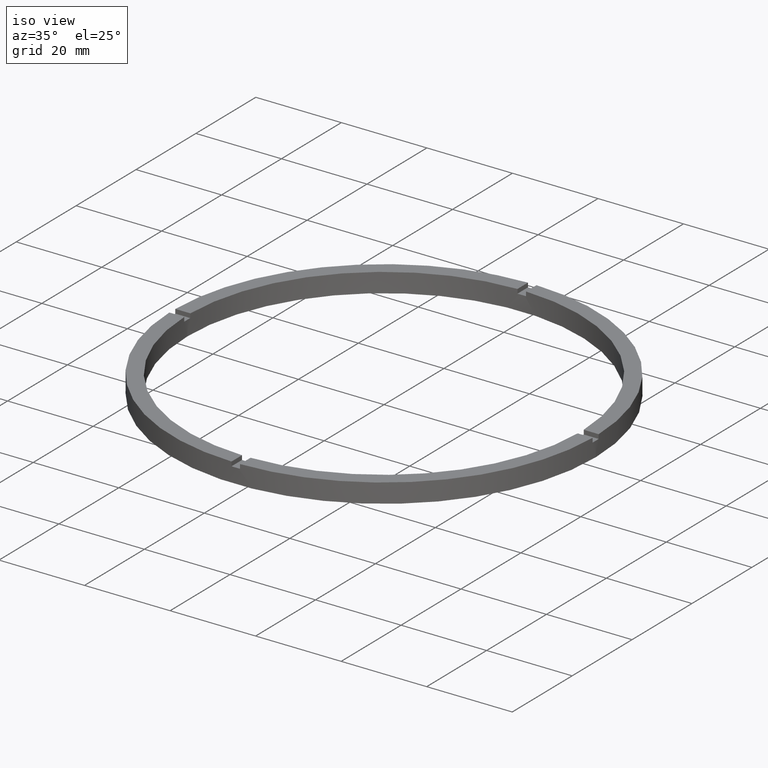
[diagram: clean part render]
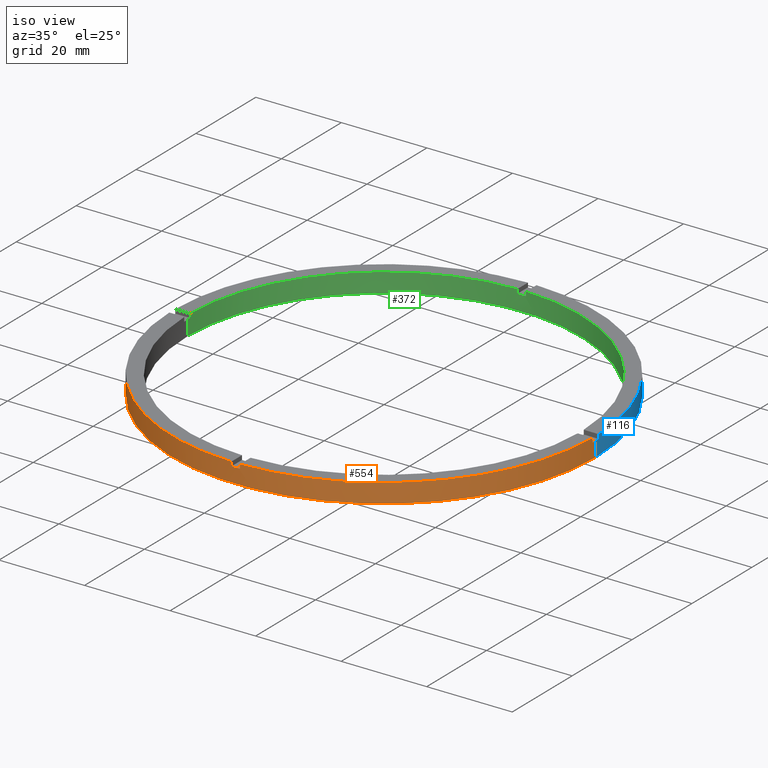
[diagram: same view with three faces highlighted in distinct colors, each labeled with its STEP entity id]
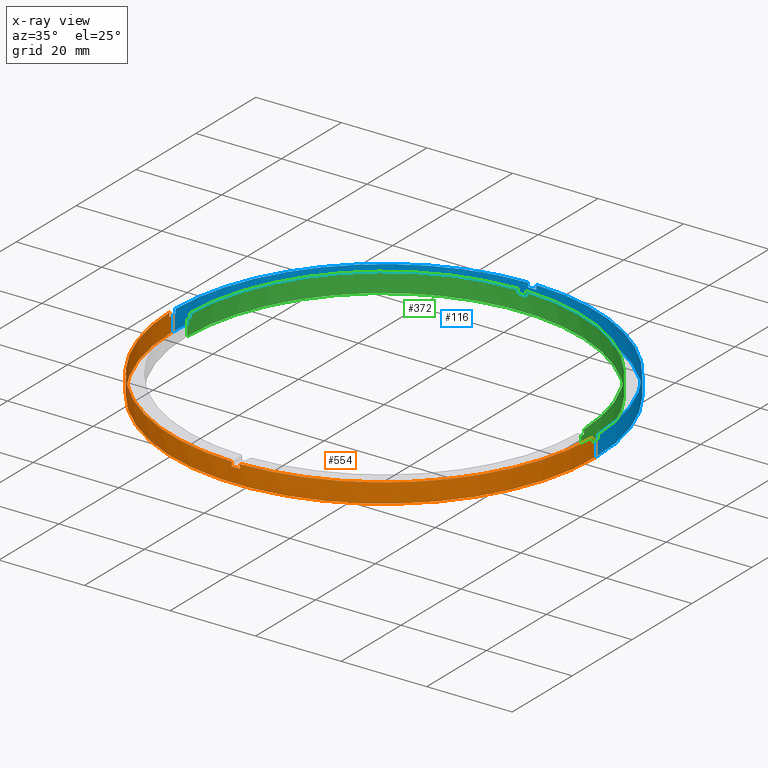
[diagram: x-ray of the same camera — body ghosted, the three highlighted faces saturated]
A machine part, iso view with three faces highlighted in distinct colors.
The next image is the same camera in x-ray (body ghosted, the three faces saturated) — at least one of them is partly hidden behind the body in this view.
Their STEP definitions:

[orange] entity #554 — the highlighted cylindrical surface (partial cylindrical patch) has radius 49.5 mm, axis along (-0, -0, -1).
#7 = EDGE_CURVE ( 'NONE', #552, #544, #697, .T. ) ;
#14 = VERTEX_POINT ( 'NONE', #74 ) ;
#20 = AXIS2_PLACEMENT_3D ( 'NONE', #117, #415, #742 ) ;
#23 = VERTEX_POINT ( 'NONE', #293 ) ;
#24 = CARTESIAN_POINT ( 'NONE',  ( 0.000000000000000000, 0.000000000000000000, 3.499999999999999556 ) ) ;
#64 = CARTESIAN_POINT ( 'NONE',  ( 0.9999999999998430145, -49.48989795907849043, 4.500000000000000000 ) ) ;
#65 = CIRCLE ( 'NONE', #473, 49.50000000000000711 ) ;
#74 = CARTESIAN_POINT ( 'NONE',  ( 0.9999999999998430145, -49.48989795907849043, 3.499999999999999556 ) ) ;
#79 = CARTESIAN_POINT ( 'NONE',  ( 49.48989795907849043, -1.000000000000155209, 3.499999999999999556 ) ) ;
#92 = DIRECTION ( 'NONE',  ( 0.000000000000000000, 0.000000000000000000, 1.000000000000000000 ) ) ;
#103 = EDGE_CURVE ( 'NONE', #525, #189, #181, .T. ) ;
#110 = DIRECTION ( 'NONE',  ( -0.000000000000000000, -0.000000000000000000, -1.000000000000000000 ) ) ;
#111 = AXIS2_PLACEMENT_3D ( 'NONE', #627, #179, #379 ) ;
#117 = CARTESIAN_POINT ( 'NONE',  ( 0.000000000000000000, 0.000000000000000000, 3.499999999999999556 ) ) ;
#134 = LINE ( 'NONE', #504, #165 ) ;
#146 = DIRECTION ( 'NONE',  ( 1.000000000000000000, 0.000000000000000000, 0.000000000000000000 ) ) ;
#154 = LINE ( 'NONE', #648, #393 ) ;
#155 = DIRECTION ( 'NONE',  ( 0.000000000000000000, 0.000000000000000000, 1.000000000000000000 ) ) ;
#165 = VECTOR ( 'NONE', #632, 1000.000000000000000 ) ;
#179 = DIRECTION ( 'NONE',  ( 0.000000000000000000, 0.000000000000000000, 1.000000000000000000 ) ) ;
#181 = LINE ( 'NONE', #595, #451 ) ;
#182 = EDGE_CURVE ( 'NONE', #544, #253, #134, .T. ) ;
#185 = VERTEX_POINT ( 'NONE', #370 ) ;
#188 = LINE ( 'NONE', #598, #475 ) ;
#189 = VERTEX_POINT ( 'NONE', #642 ) ;
#196 = CIRCLE ( 'NONE', #700, 49.50000000000000711 ) ;
#211 = CIRCLE ( 'NONE', #248, 49.50000000000000711 ) ;
#217 = EDGE_CURVE ( 'NONE', #539, #23, #154, .T. ) ;
#230 = DIRECTION ( 'NONE',  ( 1.000000000000000000, 0.000000000000000000, 0.000000000000000000 ) ) ;
#244 = CARTESIAN_POINT ( 'NONE',  ( 0.000000000000000000, 0.000000000000000000, 4.500000000000000000 ) ) ;
#245 = EDGE_LOOP ( 'NONE', ( #780, #555, #638, #512, #274, #295, #428, #507, #667, #654, #673, #545 ) ) ;
#248 = AXIS2_PLACEMENT_3D ( 'NONE', #398, #371, #230 ) ;
#253 = VERTEX_POINT ( 'NONE', #423 ) ;
#269 = VERTEX_POINT ( 'NONE', #64 ) ;
#274 = ORIENTED_EDGE ( 'NONE', *, *, #280, .T. ) ;
#275 = DIRECTION ( 'NONE',  ( 1.000000000000000000, 0.000000000000000000, 0.000000000000000000 ) ) ;
#280 = EDGE_CURVE ( 'NONE', #269, #14, #659, .T. ) ;
#293 = CARTESIAN_POINT ( 'NONE',  ( -49.48989795907849043, -1.000000000000031308, 3.499999999999999556 ) ) ;
#295 = ORIENTED_EDGE ( 'NONE', *, *, #480, .F. ) ;
#325 = EDGE_CURVE ( 'NONE', #552, #762, #732, .T. ) ;
#365 = CARTESIAN_POINT ( 'NONE',  ( 0.000000000000000000, 0.000000000000000000, 0.000000000000000000 ) ) ;
#370 = CARTESIAN_POINT ( 'NONE',  ( -1.000000000000156986, -49.48989795907849043, 4.500000000000000000 ) ) ;
#371 = DIRECTION ( 'NONE',  ( -0.000000000000000000, 0.000000000000000000, 1.000000000000000000 ) ) ;
#377 = CARTESIAN_POINT ( 'NONE',  ( 49.48989795907849043, -1.000000000000155209, 4.500000000000000000 ) ) ;
#379 = DIRECTION ( 'NONE',  ( 1.000000000000000000, 0.000000000000000000, 0.000000000000000000 ) ) ;
#393 = VECTOR ( 'NONE', #110, 1000.000000000000000 ) ;
#398 = CARTESIAN_POINT ( 'NONE',  ( 0.000000000000000000, 0.000000000000000000, 3.499999999999999556 ) ) ;
#400 = VECTOR ( 'NONE', #493, 1000.000000000000000 ) ;
#415 = DIRECTION ( 'NONE',  ( 0.000000000000000000, 0.000000000000000000, 1.000000000000000000 ) ) ;
#423 = CARTESIAN_POINT ( 'NONE',  ( 49.50000000000000711, 6.062001655779399300E-15, 0.000000000000000000 ) ) ;
#428 = ORIENTED_EDGE ( 'NONE', *, *, #607, .T. ) ;
#433 = AXIS2_PLACEMENT_3D ( 'NONE', #244, #439, #498 ) ;
#439 = DIRECTION ( 'NONE',  ( -0.000000000000000000, -0.000000000000000000, -1.000000000000000000 ) ) ;
#451 = VECTOR ( 'NONE', #578, 1000.000000000000000 ) ;
#473 = AXIS2_PLACEMENT_3D ( 'NONE', #24, #92, #275 ) ;
#475 = VECTOR ( 'NONE', #696, 1000.000000000000000 ) ;
#479 = FACE_OUTER_BOUND ( 'NONE', #245, .T. ) ;
#480 = EDGE_CURVE ( 'NONE', #649, #14, #211, .T. ) ;
#481 = VECTOR ( 'NONE', #623, 1000.000000000000000 ) ;
#488 = CIRCLE ( 'NONE', #111, 49.50000000000000711 ) ;
#493 = DIRECTION ( 'NONE',  ( -0.000000000000000000, -0.000000000000000000, -1.000000000000000000 ) ) ;
#498 = DIRECTION ( 'NONE',  ( -1.000000000000000000, 0.000000000000000000, 0.000000000000000000 ) ) ;
#502 = EDGE_CURVE ( 'NONE', #189, #253, #726, .T. ) ;
#504 = CARTESIAN_POINT ( 'NONE',  ( 49.50000000000000711, 6.062001655779399300E-15, 4.500000000000000000 ) ) ;
#507 = ORIENTED_EDGE ( 'NONE', *, *, #629, .F. ) ;
#512 = ORIENTED_EDGE ( 'NONE', *, *, #551, .F. ) ;
#525 = VERTEX_POINT ( 'NONE', #557 ) ;
#535 = CARTESIAN_POINT ( 'NONE',  ( 0.000000000000000000, 0.000000000000000000, 4.500000000000000000 ) ) ;
#539 = VERTEX_POINT ( 'NONE', #562 ) ;
#544 = VERTEX_POINT ( 'NONE', #721 ) ;
#545 = ORIENTED_EDGE ( 'NONE', *, *, #502, .T. ) ;
#551 = EDGE_CURVE ( 'NONE', #269, #762, #488, .T. ) ;
#552 = VERTEX_POINT ( 'NONE', #79 ) ;
#554 = ADVANCED_FACE ( 'NONE', ( #479 ), #716, .T. ) ;
#555 = ORIENTED_EDGE ( 'NONE', *, *, #7, .F. ) ;
#557 = CARTESIAN_POINT ( 'NONE',  ( -49.50000000000000711, 0.000000000000000000, 3.499999999999999556 ) ) ;
#562 = CARTESIAN_POINT ( 'NONE',  ( -49.48989795907849043, -1.000000000000031308, 4.500000000000000000 ) ) ;
#578 = DIRECTION ( 'NONE',  ( -0.000000000000000000, -0.000000000000000000, -1.000000000000000000 ) ) ;
#595 = CARTESIAN_POINT ( 'NONE',  ( -49.50000000000000711, 0.000000000000000000, 4.500000000000000000 ) ) ;
#598 = CARTESIAN_POINT ( 'NONE',  ( -1.000000000000156986, -49.48989795907849043, 4.500000000000000000 ) ) ;
#603 = DIRECTION ( 'NONE',  ( 1.000000000000000000, 0.000000000000000000, 0.000000000000000000 ) ) ;
#607 = EDGE_CURVE ( 'NONE', #649, #185, #188, .T. ) ;
#608 = DIRECTION ( 'NONE',  ( 0.000000000000000000, 0.000000000000000000, 1.000000000000000000 ) ) ;
#623 = DIRECTION ( 'NONE',  ( 0.000000000000000000, 0.000000000000000000, 1.000000000000000000 ) ) ;
#626 = CARTESIAN_POINT ( 'NONE',  ( 0.9999999999998430145, -49.48989795907849043, 4.500000000000000000 ) ) ;
#627 = CARTESIAN_POINT ( 'NONE',  ( 0.000000000000000000, 0.000000000000000000, 4.500000000000000000 ) ) ;
#629 = EDGE_CURVE ( 'NONE', #539, #185, #196, .T. ) ;
#632 = DIRECTION ( 'NONE',  ( -0.000000000000000000, -0.000000000000000000, -1.000000000000000000 ) ) ;
#638 = ORIENTED_EDGE ( 'NONE', *, *, #325, .T. ) ;
#642 = CARTESIAN_POINT ( 'NONE',  ( -49.50000000000000711, 0.000000000000000000, 0.000000000000000000 ) ) ;
#644 = CARTESIAN_POINT ( 'NONE',  ( -1.000000000000156986, -49.48989795907849043, 3.499999999999999556 ) ) ;
#648 = CARTESIAN_POINT ( 'NONE',  ( -49.48989795907849043, -1.000000000000031308, 4.500000000000000000 ) ) ;
#649 = VERTEX_POINT ( 'NONE', #644 ) ;
#654 = ORIENTED_EDGE ( 'NONE', *, *, #736, .F. ) ;
#659 = LINE ( 'NONE', #626, #400 ) ;
#667 = ORIENTED_EDGE ( 'NONE', *, *, #217, .T. ) ;
#673 = ORIENTED_EDGE ( 'NONE', *, *, #103, .T. ) ;
#696 = DIRECTION ( 'NONE',  ( 0.000000000000000000, 0.000000000000000000, 1.000000000000000000 ) ) ;
#697 = CIRCLE ( 'NONE', #20, 49.50000000000000711 ) ;
#700 = AXIS2_PLACEMENT_3D ( 'NONE', #535, #608, #146 ) ;
#716 = CYLINDRICAL_SURFACE ( 'NONE', #433, 49.50000000000000711 ) ;
#721 = CARTESIAN_POINT ( 'NONE',  ( 49.50000000000000711, 6.062001655779399300E-15, 3.499999999999999556 ) ) ;
#726 = CIRCLE ( 'NONE', #733, 49.50000000000000711 ) ;
#732 = LINE ( 'NONE', #377, #481 ) ;
#733 = AXIS2_PLACEMENT_3D ( 'NONE', #365, #155, #603 ) ;
#736 = EDGE_CURVE ( 'NONE', #525, #23, #65, .T. ) ;
#742 = DIRECTION ( 'NONE',  ( 1.000000000000000000, 0.000000000000000000, 0.000000000000000000 ) ) ;
#743 = CARTESIAN_POINT ( 'NONE',  ( 49.48989795907849043, -1.000000000000155209, 4.500000000000000000 ) ) ;
#762 = VERTEX_POINT ( 'NONE', #743 ) ;
#780 = ORIENTED_EDGE ( 'NONE', *, *, #182, .F. ) ;

[blue] entity #116 — the highlighted cylindrical surface (partial cylindrical patch) has radius 49.5 mm, axis along (-0, -0, -1).
#13 = ORIENTED_EDGE ( 'NONE', *, *, #182, .T. ) ;
#15 = ORIENTED_EDGE ( 'NONE', *, *, #561, .F. ) ;
#17 = ORIENTED_EDGE ( 'NONE', *, *, #609, .F. ) ;
#32 = CARTESIAN_POINT ( 'NONE',  ( -49.48989795907849043, 0.9999999999999688027, 3.499999999999999556 ) ) ;
#35 = CARTESIAN_POINT ( 'NONE',  ( 0.000000000000000000, 0.000000000000000000, 4.500000000000000000 ) ) ;
#46 = CARTESIAN_POINT ( 'NONE',  ( 0.9999999999999733546, 49.48989795907849043, 3.499999999999999556 ) ) ;
#68 = EDGE_CURVE ( 'NONE', #436, #568, #715, .T. ) ;
#75 = DIRECTION ( 'NONE',  ( 0.000000000000000000, 0.000000000000000000, 1.000000000000000000 ) ) ;
#77 = CIRCLE ( 'NONE', #614, 49.50000000000000711 ) ;
#86 = EDGE_CURVE ( 'NONE', #774, #401, #687, .T. ) ;
#96 = DIRECTION ( 'NONE',  ( 0.000000000000000000, 0.000000000000000000, 1.000000000000000000 ) ) ;
#101 = AXIS2_PLACEMENT_3D ( 'NONE', #408, #374, #611 ) ;
#103 = EDGE_CURVE ( 'NONE', #525, #189, #181, .T. ) ;
#105 = CARTESIAN_POINT ( 'NONE',  ( -1.000000000000026645, 49.48989795907849043, 4.500000000000000000 ) ) ;
#108 = EDGE_CURVE ( 'NONE', #763, #526, #449, .T. ) ;
#113 = CARTESIAN_POINT ( 'NONE',  ( 49.48989795907849043, 0.9999999999998447908, 3.499999999999999556 ) ) ;
#114 = DIRECTION ( 'NONE',  ( 0.000000000000000000, 0.000000000000000000, 1.000000000000000000 ) ) ;
#116 = ADVANCED_FACE ( 'NONE', ( #202 ), #474, .T. ) ;
#133 = VECTOR ( 'NONE', #114, 1000.000000000000000 ) ;
#134 = LINE ( 'NONE', #504, #165 ) ;
#165 = VECTOR ( 'NONE', #632, 1000.000000000000000 ) ;
#168 = VERTEX_POINT ( 'NONE', #46 ) ;
#175 = AXIS2_PLACEMENT_3D ( 'NONE', #664, #496, #376 ) ;
#181 = LINE ( 'NONE', #595, #451 ) ;
#182 = EDGE_CURVE ( 'NONE', #544, #253, #134, .T. ) ;
#189 = VERTEX_POINT ( 'NONE', #642 ) ;
#202 = FACE_OUTER_BOUND ( 'NONE', #534, .T. ) ;
#206 = CIRCLE ( 'NONE', #101, 49.50000000000000711 ) ;
#209 = CARTESIAN_POINT ( 'NONE',  ( 49.48989795907849043, 0.9999999999998447908, 4.500000000000000000 ) ) ;
#229 = CARTESIAN_POINT ( 'NONE',  ( -1.000000000000026645, 49.48989795907849043, 3.499999999999999556 ) ) ;
#235 = ORIENTED_EDGE ( 'NONE', *, *, #108, .T. ) ;
#249 = ORIENTED_EDGE ( 'NONE', *, *, #513, .F. ) ;
#253 = VERTEX_POINT ( 'NONE', #423 ) ;
#256 = EDGE_CURVE ( 'NONE', #168, #401, #394, .T. ) ;
#267 = ORIENTED_EDGE ( 'NONE', *, *, #256, .T. ) ;
#272 = ORIENTED_EDGE ( 'NONE', *, *, #68, .T. ) ;
#276 = ORIENTED_EDGE ( 'NONE', *, *, #357, .F. ) ;
#279 = ORIENTED_EDGE ( 'NONE', *, *, #103, .F. ) ;
#294 = DIRECTION ( 'NONE',  ( -0.000000000000000000, -0.000000000000000000, -1.000000000000000000 ) ) ;
#296 = CARTESIAN_POINT ( 'NONE',  ( 0.9999999999999733546, 49.48989795907849043, 4.500000000000000000 ) ) ;
#354 = DIRECTION ( 'NONE',  ( 0.000000000000000000, 0.000000000000000000, 1.000000000000000000 ) ) ;
#357 = EDGE_CURVE ( 'NONE', #544, #508, #460, .T. ) ;
#373 = AXIS2_PLACEMENT_3D ( 'NONE', #569, #670, #407 ) ;
#374 = DIRECTION ( 'NONE',  ( 0.000000000000000000, 0.000000000000000000, 1.000000000000000000 ) ) ;
#376 = DIRECTION ( 'NONE',  ( 1.000000000000000000, 0.000000000000000000, 0.000000000000000000 ) ) ;
#380 = AXIS2_PLACEMENT_3D ( 'NONE', #35, #96, #511 ) ;
#394 = LINE ( 'NONE', #296, #133 ) ;
#401 = VERTEX_POINT ( 'NONE', #723 ) ;
#407 = DIRECTION ( 'NONE',  ( 1.000000000000000000, 0.000000000000000000, 0.000000000000000000 ) ) ;
#408 = CARTESIAN_POINT ( 'NONE',  ( 0.000000000000000000, 0.000000000000000000, 4.500000000000000000 ) ) ;
#423 = CARTESIAN_POINT ( 'NONE',  ( 49.50000000000000711, 6.062001655779399300E-15, 0.000000000000000000 ) ) ;
#436 = VERTEX_POINT ( 'NONE', #770 ) ;
#440 = CARTESIAN_POINT ( 'NONE',  ( -49.48989795907849043, 0.9999999999999688027, 4.500000000000000000 ) ) ;
#449 = LINE ( 'NONE', #440, #472 ) ;
#451 = VECTOR ( 'NONE', #578, 1000.000000000000000 ) ;
#454 = CARTESIAN_POINT ( 'NONE',  ( 0.000000000000000000, 0.000000000000000000, 4.500000000000000000 ) ) ;
#460 = CIRCLE ( 'NONE', #175, 49.50000000000000711 ) ;
#465 = EDGE_CURVE ( 'NONE', #774, #508, #485, .T. ) ;
#472 = VECTOR ( 'NONE', #686, 1000.000000000000000 ) ;
#474 = CYLINDRICAL_SURFACE ( 'NONE', #558, 49.50000000000000711 ) ;
#477 = CIRCLE ( 'NONE', #586, 49.50000000000000711 ) ;
#485 = LINE ( 'NONE', #640, #710 ) ;
#491 = CIRCLE ( 'NONE', #373, 49.50000000000000711 ) ;
#496 = DIRECTION ( 'NONE',  ( 0.000000000000000000, 0.000000000000000000, 1.000000000000000000 ) ) ;
#500 = DIRECTION ( 'NONE',  ( -0.000000000000000000, -0.000000000000000000, -1.000000000000000000 ) ) ;
#504 = CARTESIAN_POINT ( 'NONE',  ( 49.50000000000000711, 6.062001655779399300E-15, 4.500000000000000000 ) ) ;
#508 = VERTEX_POINT ( 'NONE', #113 ) ;
#511 = DIRECTION ( 'NONE',  ( 1.000000000000000000, 0.000000000000000000, 0.000000000000000000 ) ) ;
#513 = EDGE_CURVE ( 'NONE', #436, #526, #206, .T. ) ;
#514 = CARTESIAN_POINT ( 'NONE',  ( 0.000000000000000000, 0.000000000000000000, 0.000000000000000000 ) ) ;
#525 = VERTEX_POINT ( 'NONE', #557 ) ;
#526 = VERTEX_POINT ( 'NONE', #620 ) ;
#528 = DIRECTION ( 'NONE',  ( -0.000000000000000000, -0.000000000000000000, -1.000000000000000000 ) ) ;
#534 = EDGE_LOOP ( 'NONE', ( #276, #13, #782, #279, #17, #235, #249, #272, #15, #267, #752, #537 ) ) ;
#537 = ORIENTED_EDGE ( 'NONE', *, *, #465, .T. ) ;
#544 = VERTEX_POINT ( 'NONE', #721 ) ;
#557 = CARTESIAN_POINT ( 'NONE',  ( -49.50000000000000711, 0.000000000000000000, 3.499999999999999556 ) ) ;
#558 = AXIS2_PLACEMENT_3D ( 'NONE', #454, #500, #570 ) ;
#561 = EDGE_CURVE ( 'NONE', #168, #568, #491, .T. ) ;
#568 = VERTEX_POINT ( 'NONE', #229 ) ;
#569 = CARTESIAN_POINT ( 'NONE',  ( 0.000000000000000000, 0.000000000000000000, 3.499999999999999556 ) ) ;
#570 = DIRECTION ( 'NONE',  ( -1.000000000000000000, 0.000000000000000000, 0.000000000000000000 ) ) ;
#578 = DIRECTION ( 'NONE',  ( -0.000000000000000000, -0.000000000000000000, -1.000000000000000000 ) ) ;
#586 = AXIS2_PLACEMENT_3D ( 'NONE', #646, #75, #633 ) ;
#590 = DIRECTION ( 'NONE',  ( 1.000000000000000000, 0.000000000000000000, 0.000000000000000000 ) ) ;
#595 = CARTESIAN_POINT ( 'NONE',  ( -49.50000000000000711, 0.000000000000000000, 4.500000000000000000 ) ) ;
#609 = EDGE_CURVE ( 'NONE', #763, #525, #477, .T. ) ;
#611 = DIRECTION ( 'NONE',  ( 1.000000000000000000, 0.000000000000000000, 0.000000000000000000 ) ) ;
#614 = AXIS2_PLACEMENT_3D ( 'NONE', #514, #354, #590 ) ;
#620 = CARTESIAN_POINT ( 'NONE',  ( -49.48989795907849043, 0.9999999999999688027, 4.500000000000000000 ) ) ;
#632 = DIRECTION ( 'NONE',  ( -0.000000000000000000, -0.000000000000000000, -1.000000000000000000 ) ) ;
#633 = DIRECTION ( 'NONE',  ( 1.000000000000000000, 0.000000000000000000, 0.000000000000000000 ) ) ;
#640 = CARTESIAN_POINT ( 'NONE',  ( 49.48989795907849043, 0.9999999999998447908, 4.500000000000000000 ) ) ;
#642 = CARTESIAN_POINT ( 'NONE',  ( -49.50000000000000711, 0.000000000000000000, 0.000000000000000000 ) ) ;
#646 = CARTESIAN_POINT ( 'NONE',  ( 0.000000000000000000, 0.000000000000000000, 3.499999999999999556 ) ) ;
#664 = CARTESIAN_POINT ( 'NONE',  ( 0.000000000000000000, 0.000000000000000000, 3.499999999999999556 ) ) ;
#670 = DIRECTION ( 'NONE',  ( 0.000000000000000000, -0.000000000000000000, 1.000000000000000000 ) ) ;
#686 = DIRECTION ( 'NONE',  ( 0.000000000000000000, 0.000000000000000000, 1.000000000000000000 ) ) ;
#687 = CIRCLE ( 'NONE', #380, 49.50000000000000711 ) ;
#694 = VECTOR ( 'NONE', #528, 1000.000000000000000 ) ;
#710 = VECTOR ( 'NONE', #294, 1000.000000000000000 ) ;
#715 = LINE ( 'NONE', #105, #694 ) ;
#721 = CARTESIAN_POINT ( 'NONE',  ( 49.50000000000000711, 6.062001655779399300E-15, 3.499999999999999556 ) ) ;
#723 = CARTESIAN_POINT ( 'NONE',  ( 0.9999999999999733546, 49.48989795907849043, 4.500000000000000000 ) ) ;
#740 = EDGE_CURVE ( 'NONE', #253, #189, #77, .T. ) ;
#752 = ORIENTED_EDGE ( 'NONE', *, *, #86, .F. ) ;
#763 = VERTEX_POINT ( 'NONE', #32 ) ;
#770 = CARTESIAN_POINT ( 'NONE',  ( -1.000000000000026645, 49.48989795907849043, 4.500000000000000000 ) ) ;
#774 = VERTEX_POINT ( 'NONE', #209 ) ;
#782 = ORIENTED_EDGE ( 'NONE', *, *, #740, .T. ) ;

[green] entity #372 — the highlighted cylindrical surface (partial cylindrical patch) has radius 46 mm, axis along (-0, -0, -1).
#1 = AXIS2_PLACEMENT_3D ( 'NONE', #121, #254, #624 ) ;
#3 = ORIENTED_EDGE ( 'NONE', *, *, #719, .T. ) ;
#6 = VERTEX_POINT ( 'NONE', #615 ) ;
#8 = VERTEX_POINT ( 'NONE', #461 ) ;
#22 = ORIENTED_EDGE ( 'NONE', *, *, #152, .T. ) ;
#25 = EDGE_CURVE ( 'NONE', #247, #404, #455, .T. ) ;
#30 = DIRECTION ( 'NONE',  ( 1.000000000000000000, 0.000000000000000000, 0.000000000000000000 ) ) ;
#38 = LINE ( 'NONE', #406, #581 ) ;
#44 = LINE ( 'NONE', #157, #56 ) ;
#48 = DIRECTION ( 'NONE',  ( 0.000000000000000000, 0.000000000000000000, 1.000000000000000000 ) ) ;
#55 = VECTOR ( 'NONE', #600, 1000.000000000000000 ) ;
#56 = VECTOR ( 'NONE', #641, 1000.000000000000000 ) ;
#80 = CIRCLE ( 'NONE', #692, 46.00000000000000000 ) ;
#82 = CARTESIAN_POINT ( 'NONE',  ( -46.00000000000000000, 0.000000000000000000, 3.499999999999999556 ) ) ;
#87 = CARTESIAN_POINT ( 'NONE',  ( 0.000000000000000000, 0.000000000000000000, 0.000000000000000000 ) ) ;
#91 = CARTESIAN_POINT ( 'NONE',  ( 0.000000000000000000, 0.000000000000000000, 3.499999999999999556 ) ) ;
#94 = CARTESIAN_POINT ( 'NONE',  ( -1.000000000000026645, 45.98912915026767223, 4.500000000000000000 ) ) ;
#115 = EDGE_CURVE ( 'NONE', #542, #411, #207, .T. ) ;
#119 = CARTESIAN_POINT ( 'NONE',  ( -45.98912915026767223, 0.9999999999999696909, 3.499999999999999556 ) ) ;
#121 = CARTESIAN_POINT ( 'NONE',  ( 0.000000000000000000, 0.000000000000000000, 4.500000000000000000 ) ) ;
#123 = AXIS2_PLACEMENT_3D ( 'NONE', #91, #342, #446 ) ;
#125 = ORIENTED_EDGE ( 'NONE', *, *, #115, .T. ) ;
#127 = AXIS2_PLACEMENT_3D ( 'NONE', #349, #739, #30 ) ;
#147 = AXIS2_PLACEMENT_3D ( 'NONE', #347, #270, #731 ) ;
#152 = EDGE_CURVE ( 'NONE', #8, #404, #729, .T. ) ;
#157 = CARTESIAN_POINT ( 'NONE',  ( 45.98912915026767934, 0.9999999999998445688, 4.500000000000000000 ) ) ;
#164 = CARTESIAN_POINT ( 'NONE',  ( -45.98912915026767223, 0.9999999999999696909, 4.500000000000000000 ) ) ;
#171 = DIRECTION ( 'NONE',  ( -0.000000000000000000, -0.000000000000000000, -1.000000000000000000 ) ) ;
#172 = VECTOR ( 'NONE', #171, 1000.000000000000000 ) ;
#184 = DIRECTION ( 'NONE',  ( -0.000000000000000000, -0.000000000000000000, -1.000000000000000000 ) ) ;
#190 = VECTOR ( 'NONE', #184, 1000.000000000000000 ) ;
#194 = CARTESIAN_POINT ( 'NONE',  ( -46.00000000000000000, 0.000000000000000000, 0.000000000000000000 ) ) ;
#207 = CIRCLE ( 'NONE', #147, 46.00000000000000000 ) ;
#222 = FACE_OUTER_BOUND ( 'NONE', #520, .T. ) ;
#246 = CARTESIAN_POINT ( 'NONE',  ( 0.000000000000000000, 0.000000000000000000, 4.500000000000000000 ) ) ;
#247 = VERTEX_POINT ( 'NONE', #524 ) ;
#250 = VERTEX_POINT ( 'NONE', #119 ) ;
#254 = DIRECTION ( 'NONE',  ( -0.000000000000000000, -0.000000000000000000, -1.000000000000000000 ) ) ;
#263 = ORIENTED_EDGE ( 'NONE', *, *, #360, .T. ) ;
#264 = ORIENTED_EDGE ( 'NONE', *, *, #650, .F. ) ;
#266 = EDGE_CURVE ( 'NONE', #250, #665, #396, .T. ) ;
#270 = DIRECTION ( 'NONE',  ( 0.000000000000000000, 0.000000000000000000, 1.000000000000000000 ) ) ;
#303 = VERTEX_POINT ( 'NONE', #194 ) ;
#311 = ORIENTED_EDGE ( 'NONE', *, *, #728, .T. ) ;
#329 = DIRECTION ( 'NONE',  ( 1.000000000000000000, 0.000000000000000000, 0.000000000000000000 ) ) ;
#332 = CIRCLE ( 'NONE', #666, 46.00000000000000000 ) ;
#334 = CARTESIAN_POINT ( 'NONE',  ( 46.00000000000000000, 5.633375276077824704E-15, 3.499999999999999556 ) ) ;
#335 = DIRECTION ( 'NONE',  ( 0.000000000000000000, 0.000000000000000000, 1.000000000000000000 ) ) ;
#336 = LINE ( 'NONE', #359, #55 ) ;
#337 = AXIS2_PLACEMENT_3D ( 'NONE', #246, #335, #329 ) ;
#342 = DIRECTION ( 'NONE',  ( 0.000000000000000000, -0.000000000000000000, 1.000000000000000000 ) ) ;
#347 = CARTESIAN_POINT ( 'NONE',  ( 0.000000000000000000, 0.000000000000000000, 3.499999999999999556 ) ) ;
#349 = CARTESIAN_POINT ( 'NONE',  ( 0.000000000000000000, 0.000000000000000000, 3.499999999999999556 ) ) ;
#353 = EDGE_CURVE ( 'NONE', #6, #754, #718, .T. ) ;
#359 = CARTESIAN_POINT ( 'NONE',  ( 0.9999999999999733546, 45.98912915026767223, 4.500000000000000000 ) ) ;
#360 = EDGE_CURVE ( 'NONE', #546, #303, #487, .T. ) ;
#363 = DIRECTION ( 'NONE',  ( 0.000000000000000000, 0.000000000000000000, 1.000000000000000000 ) ) ;
#372 = ADVANCED_FACE ( 'NONE', ( #222 ), #734, .F. ) ;
#396 = LINE ( 'NONE', #164, #397 ) ;
#397 = VECTOR ( 'NONE', #363, 1000.000000000000000 ) ;
#404 = VERTEX_POINT ( 'NONE', #435 ) ;
#406 = CARTESIAN_POINT ( 'NONE',  ( 46.00000000000000000, 5.633375276077824704E-15, 4.500000000000000000 ) ) ;
#411 = VERTEX_POINT ( 'NONE', #618 ) ;
#429 = DIRECTION ( 'NONE',  ( 1.000000000000000000, 0.000000000000000000, 0.000000000000000000 ) ) ;
#430 = CARTESIAN_POINT ( 'NONE',  ( 46.00000000000000000, 5.633375276077824704E-15, 0.000000000000000000 ) ) ;
#435 = CARTESIAN_POINT ( 'NONE',  ( -1.000000000000026645, 45.98912915026767223, 3.499999999999999556 ) ) ;
#441 = CARTESIAN_POINT ( 'NONE',  ( -46.00000000000000000, 0.000000000000000000, 4.500000000000000000 ) ) ;
#446 = DIRECTION ( 'NONE',  ( 1.000000000000000000, 0.000000000000000000, 0.000000000000000000 ) ) ;
#453 = VERTEX_POINT ( 'NONE', #430 ) ;
#455 = LINE ( 'NONE', #94, #172 ) ;
#459 = CARTESIAN_POINT ( 'NONE',  ( 0.000000000000000000, 0.000000000000000000, 4.500000000000000000 ) ) ;
#461 = CARTESIAN_POINT ( 'NONE',  ( 0.9999999999999733546, 45.98912915026767223, 3.499999999999999556 ) ) ;
#478 = CARTESIAN_POINT ( 'NONE',  ( -45.98912915026767223, 0.9999999999999696909, 4.500000000000000000 ) ) ;
#487 = LINE ( 'NONE', #441, #190 ) ;
#520 = EDGE_LOOP ( 'NONE', ( #781, #125, #777, #536, #264, #22, #680, #3, #783, #311, #263, #682 ) ) ;
#524 = CARTESIAN_POINT ( 'NONE',  ( -1.000000000000026645, 45.98912915026767223, 4.500000000000000000 ) ) ;
#536 = ORIENTED_EDGE ( 'NONE', *, *, #353, .T. ) ;
#542 = VERTEX_POINT ( 'NONE', #334 ) ;
#546 = VERTEX_POINT ( 'NONE', #82 ) ;
#581 = VECTOR ( 'NONE', #634, 1000.000000000000000 ) ;
#582 = CIRCLE ( 'NONE', #127, 46.00000000000000000 ) ;
#600 = DIRECTION ( 'NONE',  ( 0.000000000000000000, 0.000000000000000000, 1.000000000000000000 ) ) ;
#615 = CARTESIAN_POINT ( 'NONE',  ( 45.98912915026767934, 0.9999999999998445688, 4.500000000000000000 ) ) ;
#618 = CARTESIAN_POINT ( 'NONE',  ( 45.98912915026767934, 0.9999999999998445688, 3.499999999999999556 ) ) ;
#624 = DIRECTION ( 'NONE',  ( -1.000000000000000000, 0.000000000000000000, 0.000000000000000000 ) ) ;
#630 = CARTESIAN_POINT ( 'NONE',  ( 0.9999999999999733546, 45.98912915026767223, 4.500000000000000000 ) ) ;
#634 = DIRECTION ( 'NONE',  ( -0.000000000000000000, -0.000000000000000000, -1.000000000000000000 ) ) ;
#641 = DIRECTION ( 'NONE',  ( -0.000000000000000000, -0.000000000000000000, -1.000000000000000000 ) ) ;
#650 = EDGE_CURVE ( 'NONE', #8, #754, #336, .T. ) ;
#657 = EDGE_CURVE ( 'NONE', #542, #453, #38, .T. ) ;
#665 = VERTEX_POINT ( 'NONE', #478 ) ;
#666 = AXIS2_PLACEMENT_3D ( 'NONE', #459, #48, #745 ) ;
#671 = EDGE_CURVE ( 'NONE', #6, #411, #44, .T. ) ;
#680 = ORIENTED_EDGE ( 'NONE', *, *, #25, .F. ) ;
#682 = ORIENTED_EDGE ( 'NONE', *, *, #776, .F. ) ;
#692 = AXIS2_PLACEMENT_3D ( 'NONE', #87, #712, #429 ) ;
#712 = DIRECTION ( 'NONE',  ( 0.000000000000000000, 0.000000000000000000, 1.000000000000000000 ) ) ;
#718 = CIRCLE ( 'NONE', #337, 46.00000000000000000 ) ;
#719 = EDGE_CURVE ( 'NONE', #247, #665, #332, .T. ) ;
#728 = EDGE_CURVE ( 'NONE', #250, #546, #582, .T. ) ;
#729 = CIRCLE ( 'NONE', #123, 46.00000000000000000 ) ;
#731 = DIRECTION ( 'NONE',  ( 1.000000000000000000, 0.000000000000000000, 0.000000000000000000 ) ) ;
#734 = CYLINDRICAL_SURFACE ( 'NONE', #1, 46.00000000000000000 ) ;
#739 = DIRECTION ( 'NONE',  ( 0.000000000000000000, 0.000000000000000000, 1.000000000000000000 ) ) ;
#745 = DIRECTION ( 'NONE',  ( 1.000000000000000000, 0.000000000000000000, 0.000000000000000000 ) ) ;
#754 = VERTEX_POINT ( 'NONE', #630 ) ;
#776 = EDGE_CURVE ( 'NONE', #453, #303, #80, .T. ) ;
#777 = ORIENTED_EDGE ( 'NONE', *, *, #671, .F. ) ;
#781 = ORIENTED_EDGE ( 'NONE', *, *, #657, .F. ) ;
#783 = ORIENTED_EDGE ( 'NONE', *, *, #266, .F. ) ;